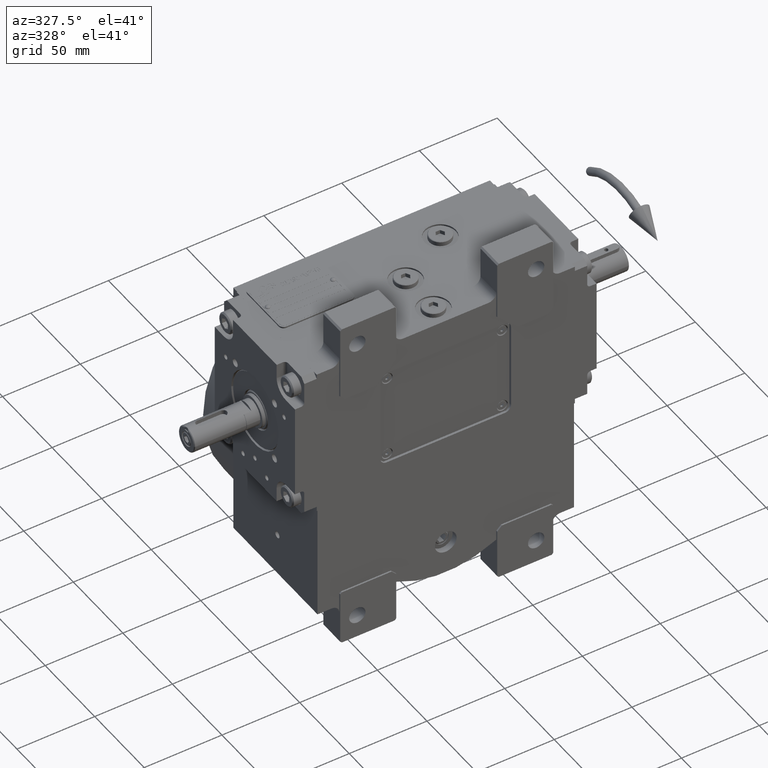
[diagram: clean part render]
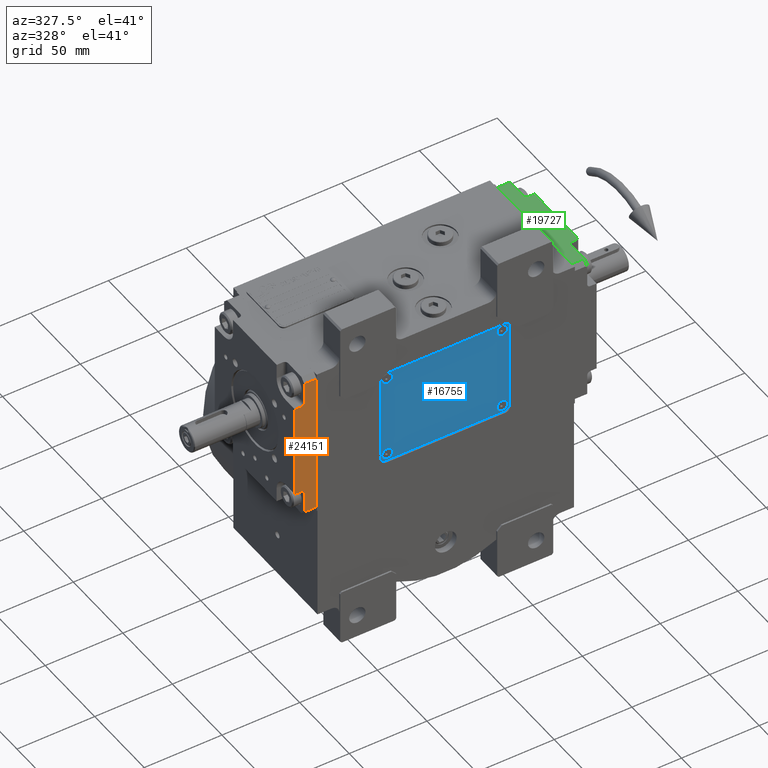
[diagram: same view with three faces highlighted in distinct colors, each labeled with its STEP entity id]
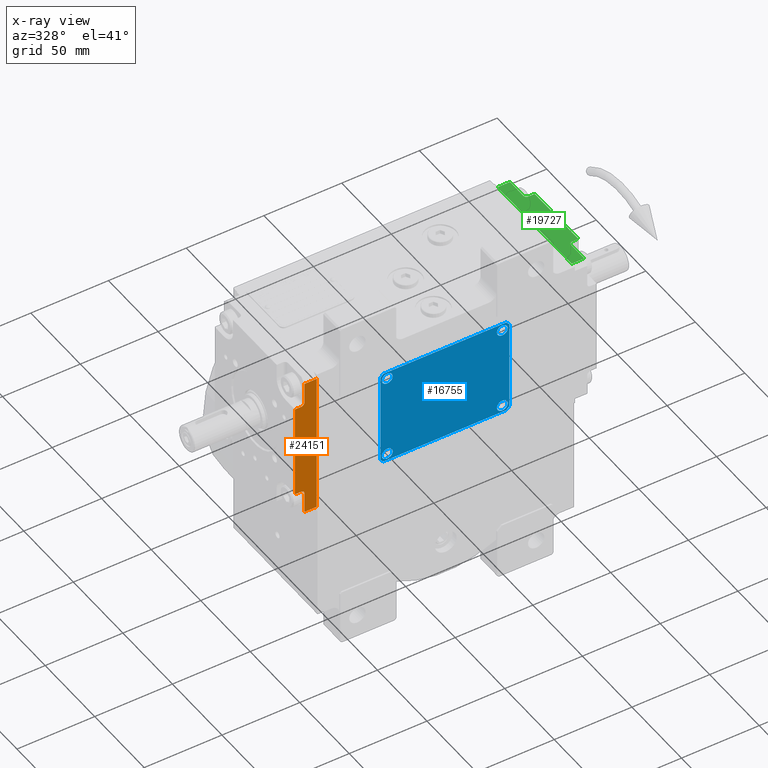
[diagram: x-ray of the same camera — body ghosted, the three highlighted faces saturated]
A machine part, auxiliary view with three faces highlighted in distinct colors.
The next image is the same camera in x-ray (body ghosted, the three faces saturated) — at least one of them is partly hidden behind the body in this view.
Their STEP definitions:

[orange] entity #24151 — the highlighted planar face has unit normal (-0, -1, -0).
#632 = EDGE_CURVE ( 'NONE', #45059, #46808, #52905, .T. ) ;
#1247 = DIRECTION ( 'NONE',  ( -3.122502256758250246E-14, -2.602085213965208275E-15, -1.000000000000000000 ) ) ;
#2086 = ORIENTED_EDGE ( 'NONE', *, *, #15331, .F. ) ;
#2377 = LINE ( 'NONE', #43037, #58990 ) ;
#2817 = VECTOR ( 'NONE', #10525, 1000.000000000000000 ) ;
#3401 = AXIS2_PLACEMENT_3D ( 'NONE', #45823, #11567, #1247 ) ;
#5436 = ORIENTED_EDGE ( 'NONE', *, *, #62373, .T. ) ;
#5790 = DIRECTION ( 'NONE',  ( -5.318913696477178202E-29, -1.000000000000000000, -4.218847493575603531E-15 ) ) ;
#6089 = CARTESIAN_POINT ( 'NONE',  ( -40.50000000000105871, -10.00000000000000888, -30.50000000000106937 ) ) ;
#7337 = VECTOR ( 'NONE', #8565, 1000.000000000000000 ) ;
#7767 = DIRECTION ( 'NONE',  ( -5.318913696477178202E-29, -1.000000000000000000, -4.218847493575603531E-15 ) ) ;
#8565 = DIRECTION ( 'NONE',  ( 3.164135620181696140E-14, 4.218847493575609842E-15, 1.000000000000000000 ) ) ;
#8619 = CARTESIAN_POINT ( 'NONE',  ( -40.50000000000158451, 0.000000000000000000, -46.00000000000105160 ) ) ;
#8889 = DIRECTION ( 'NONE',  ( 5.318913696477178202E-29, 1.000000000000000000, 4.218847493575603531E-15 ) ) ;
#9895 = LINE ( 'NONE', #54799, #2817 ) ;
#10525 = DIRECTION ( 'NONE',  ( 5.318913696477178202E-29, 1.000000000000000000, 4.218847493575603531E-15 ) ) ;
#10890 = CARTESIAN_POINT ( 'NONE',  ( -40.49999999999921130, -13.99999999999999822, 30.49999999999841549 ) ) ;
#11567 = DIRECTION ( 'NONE',  ( 1.000000000000000000, 5.317741082157147631E-29, 3.164135620181696140E-14 ) ) ;
#11854 = VERTEX_POINT ( 'NONE', #15641 ) ;
#13286 = DIRECTION ( 'NONE',  ( 3.164135620181696140E-14, 4.218847493575609842E-15, 1.000000000000000000 ) ) ;
#14218 = ORIENTED_EDGE ( 'NONE', *, *, #44705, .F. ) ;
#15331 = EDGE_CURVE ( 'NONE', #45171, #26677, #24124, .T. ) ;
#15641 = CARTESIAN_POINT ( 'NONE',  ( -40.49999999999921130, -9.999999999999994671, 30.49999999999841549 ) ) ;
#16662 = LINE ( 'NONE', #56108, #7337 ) ;
#18268 = FACE_OUTER_BOUND ( 'NONE', #39839, .T. ) ;
#18566 = ORIENTED_EDGE ( 'NONE', *, *, #50321, .T. ) ;
#21010 = VERTEX_POINT ( 'NONE', #6089 ) ;
#21391 = ORIENTED_EDGE ( 'NONE', *, *, #60599, .T. ) ;
#22819 = PLANE ( 'NONE',  #27006 ) ;
#23450 = DIRECTION ( 'NONE',  ( 3.164135620181696140E-14, 4.218847493575609842E-15, 1.000000000000000000 ) ) ;
#23706 = ORIENTED_EDGE ( 'NONE', *, *, #38279, .T. ) ;
#24124 = LINE ( 'NONE', #8619, #59705 ) ;
#24151 = ADVANCED_FACE ( 'NONE', ( #18268 ), #22819, .T. ) ;
#24850 = CARTESIAN_POINT ( 'NONE',  ( -40.50000000000105871, -13.99999999999999822, -30.50000000000106937 ) ) ;
#26677 = VERTEX_POINT ( 'NONE', #51564 ) ;
#27006 = AXIS2_PLACEMENT_3D ( 'NONE', #32501, #52534, #23450 ) ;
#28190 = AXIS2_PLACEMENT_3D ( 'NONE', #32446, #38246, #42137 ) ;
#28304 = VERTEX_POINT ( 'NONE', #38937 ) ;
#30938 = CARTESIAN_POINT ( 'NONE',  ( -40.50000000000158451, 0.000000000000000000, -46.00000000000105160 ) ) ;
#31761 = VECTOR ( 'NONE', #5790, 1000.000000000000000 ) ;
#32446 = CARTESIAN_POINT ( 'NONE',  ( -40.50000000000132161, -10.00000000000000888, -32.50000000000107292 ) ) ;
#32501 = CARTESIAN_POINT ( 'NONE',  ( -40.50000000000158451, 0.000000000000000000, -49.00000000000105871 ) ) ;
#33490 = DIRECTION ( 'NONE',  ( 3.164135620181696140E-14, 4.218847493575609842E-15, 1.000000000000000000 ) ) ;
#34827 = CARTESIAN_POINT ( 'NONE',  ( -40.49999999999868550, -7.999999999999992895, 45.99999999999841549 ) ) ;
#36120 = VERTEX_POINT ( 'NONE', #48424 ) ;
#36813 = EDGE_CURVE ( 'NONE', #56307, #53870, #2377, .T. ) ;
#38246 = DIRECTION ( 'NONE',  ( 1.000000000000000000, 5.317741082157147631E-29, 3.164135620181696140E-14 ) ) ;
#38279 = EDGE_CURVE ( 'NONE', #36120, #28304, #16662, .T. ) ;
#38937 = CARTESIAN_POINT ( 'NONE',  ( -40.50000000000132161, -8.000000000000007105, -32.50000000000107292 ) ) ;
#39839 = EDGE_LOOP ( 'NONE', ( #51141, #5436, #21391, #51221, #14218, #2086, #18566, #23706, #61400, #53537 ) ) ;
#40350 = LINE ( 'NONE', #30938, #31761 ) ;
#42005 = CARTESIAN_POINT ( 'NONE',  ( -40.49999999999894840, -7.999999999999992895, 32.49999999999842260 ) ) ;
#42137 = DIRECTION ( 'NONE',  ( 0.000000000000000000, 1.000000000000000000, 3.469446951953614189E-15 ) ) ;
#42845 = EDGE_CURVE ( 'NONE', #28304, #21010, #47795, .T. ) ;
#43037 = CARTESIAN_POINT ( 'NONE',  ( -40.49999999999894840, -7.999999999999992895, 32.49999999999842260 ) ) ;
#44093 = LINE ( 'NONE', #63825, #47896 ) ;
#44705 = EDGE_CURVE ( 'NONE', #26677, #53870, #46226, .T. ) ;
#45059 = VERTEX_POINT ( 'NONE', #24850 ) ;
#45165 = VECTOR ( 'NONE', #33490, 1000.000000000000000 ) ;
#45171 = VERTEX_POINT ( 'NONE', #51314 ) ;
#45823 = CARTESIAN_POINT ( 'NONE',  ( -40.49999999999894840, -9.999999999999994671, 32.49999999999842260 ) ) ;
#45924 = CARTESIAN_POINT ( 'NONE',  ( -40.49999999999868550, 0.000000000000000000, 45.99999999999841549 ) ) ;
#46226 = LINE ( 'NONE', #45924, #50064 ) ;
#46808 = VERTEX_POINT ( 'NONE', #10890 ) ;
#47540 = EDGE_CURVE ( 'NONE', #45059, #21010, #9895, .T. ) ;
#47795 = CIRCLE ( 'NONE', #28190, 2.000000000000000000 ) ;
#47855 = CIRCLE ( 'NONE', #3401, 2.000000000000001776 ) ;
#47896 = VECTOR ( 'NONE', #8889, 1000.000000000000000 ) ;
#48424 = CARTESIAN_POINT ( 'NONE',  ( -40.50000000000158451, -8.000000000000007105, -46.00000000000105160 ) ) ;
#50064 = VECTOR ( 'NONE', #7767, 1000.000000000000000 ) ;
#50321 = EDGE_CURVE ( 'NONE', #45171, #36120, #40350, .T. ) ;
#51141 = ORIENTED_EDGE ( 'NONE', *, *, #632, .T. ) ;
#51221 = ORIENTED_EDGE ( 'NONE', *, *, #36813, .T. ) ;
#51314 = CARTESIAN_POINT ( 'NONE',  ( -40.50000000000158451, 0.000000000000000000, -46.00000000000105160 ) ) ;
#51564 = CARTESIAN_POINT ( 'NONE',  ( -40.49999999999868550, 0.000000000000000000, 45.99999999999841549 ) ) ;
#52246 = DIRECTION ( 'NONE',  ( 3.164135620181696140E-14, 4.218847493575609842E-15, 1.000000000000000000 ) ) ;
#52249 = CARTESIAN_POINT ( 'NONE',  ( -40.50000000000105871, -13.99999999999999822, -30.50000000000106937 ) ) ;
#52534 = DIRECTION ( 'NONE',  ( -1.000000000000000000, 2.138027017891656258E-28, 3.164135620181696140E-14 ) ) ;
#52905 = LINE ( 'NONE', #52249, #45165 ) ;
#53537 = ORIENTED_EDGE ( 'NONE', *, *, #47540, .F. ) ;
#53870 = VERTEX_POINT ( 'NONE', #34827 ) ;
#54799 = CARTESIAN_POINT ( 'NONE',  ( -40.50000000000105871, -13.99999999999999822, -30.50000000000106937 ) ) ;
#56108 = CARTESIAN_POINT ( 'NONE',  ( -40.50000000000158451, -8.000000000000007105, -46.00000000000105160 ) ) ;
#56307 = VERTEX_POINT ( 'NONE', #42005 ) ;
#58990 = VECTOR ( 'NONE', #13286, 1000.000000000000000 ) ;
#59705 = VECTOR ( 'NONE', #52246, 1000.000000000000000 ) ;
#60599 = EDGE_CURVE ( 'NONE', #11854, #56307, #47855, .T. ) ;
#61400 = ORIENTED_EDGE ( 'NONE', *, *, #42845, .T. ) ;
#62373 = EDGE_CURVE ( 'NONE', #46808, #11854, #44093, .T. ) ;
#63825 = CARTESIAN_POINT ( 'NONE',  ( -40.49999999999921130, -13.99999999999999822, 30.49999999999841549 ) ) ;

[blue] entity #16755 — the highlighted planar face has unit normal (0, -1, 0).
#246 = LINE ( 'NONE', #48723, #52758 ) ;
#383 = VERTEX_POINT ( 'NONE', #51606 ) ;
#928 = VERTEX_POINT ( 'NONE', #49799 ) ;
#997 = ORIENTED_EDGE ( 'NONE', *, *, #36227, .F. ) ;
#1161 = EDGE_LOOP ( 'NONE', ( #56685, #35940, #41957, #63492, #24282, #44295, #25539, #14876 ) ) ;
#2004 = ORIENTED_EDGE ( 'NONE', *, *, #48725, .F. ) ;
#2336 = VERTEX_POINT ( 'NONE', #15626 ) ;
#2522 = CARTESIAN_POINT ( 'NONE',  ( 33.50000000000000000, 26.99999999999999645, 3.000000000000002665 ) ) ;
#2624 = DIRECTION ( 'NONE',  ( 1.000000000000000000, 0.000000000000000000, 0.000000000000000000 ) ) ;
#3095 = AXIS2_PLACEMENT_3D ( 'NONE', #9065, #27795, #43647 ) ;
#3658 = VECTOR ( 'NONE', #2624, 1000.000000000000000 ) ;
#4481 = DIRECTION ( 'NONE',  ( 0.000000000000000000, -1.000000000000000000, 0.000000000000000000 ) ) ;
#5864 = AXIS2_PLACEMENT_3D ( 'NONE', #42340, #62084, #9379 ) ;
#6911 = DIRECTION ( 'NONE',  ( 0.000000000000000000, 0.000000000000000000, 1.000000000000000000 ) ) ;
#7720 = CARTESIAN_POINT ( 'NONE',  ( 39.50000000000000000, 31.50000000000000000, 3.000000000000002665 ) ) ;
#7963 = DIRECTION ( 'NONE',  ( 1.000000000000000000, -9.912705577010316675E-16, 0.000000000000000000 ) ) ;
#8951 = AXIS2_PLACEMENT_3D ( 'NONE', #46209, #17427, #41685 ) ;
#8953 = FACE_BOUND ( 'NONE', #37868, .T. ) ;
#9065 = CARTESIAN_POINT ( 'NONE',  ( 37.00000000000000000, 26.99999999999999645, 3.000000000000002665 ) ) ;
#9301 = VERTEX_POINT ( 'NONE', #45329 ) ;
#9379 = DIRECTION ( 'NONE',  ( -1.000000000000000000, 0.000000000000000000, 0.000000000000000000 ) ) ;
#9818 = LINE ( 'NONE', #24355, #56823 ) ;
#11027 = CIRCLE ( 'NONE', #8951, 3.500000000000003109 ) ;
#11209 = EDGE_CURVE ( 'NONE', #383, #2336, #60474, .T. ) ;
#11673 = CARTESIAN_POINT ( 'NONE',  ( -39.50000000000000000, -31.50000000000000000, 3.000000000000002665 ) ) ;
#12071 = CARTESIAN_POINT ( 'NONE',  ( 37.00000000000000000, -26.99999999999999645, 3.000000000000002665 ) ) ;
#12841 = CARTESIAN_POINT ( 'NONE',  ( 41.50000000000000000, 29.50000000000000000, 3.000000000000002665 ) ) ;
#13137 = CARTESIAN_POINT ( 'NONE',  ( 0.000000000000000000, 0.000000000000000000, 3.000000000000002665 ) ) ;
#14250 = AXIS2_PLACEMENT_3D ( 'NONE', #48043, #19243, #7963 ) ;
#14304 = VERTEX_POINT ( 'NONE', #32661 ) ;
#14364 = ORIENTED_EDGE ( 'NONE', *, *, #19210, .F. ) ;
#14876 = ORIENTED_EDGE ( 'NONE', *, *, #37936, .T. ) ;
#15140 = CARTESIAN_POINT ( 'NONE',  ( -37.00000000000000000, -26.99999999999999645, 3.000000000000002665 ) ) ;
#15346 = EDGE_CURVE ( 'NONE', #61833, #22262, #48341, .T. ) ;
#15469 = CARTESIAN_POINT ( 'NONE',  ( -33.50000000000000000, -26.99999999999999645, 3.000000000000002665 ) ) ;
#15626 = CARTESIAN_POINT ( 'NONE',  ( 39.50000000000000000, -31.50000000000000000, 3.000000000000002665 ) ) ;
#16738 = CARTESIAN_POINT ( 'NONE',  ( -41.50000000000000000, 29.50000000000000000, 3.000000000000002665 ) ) ;
#16755 = ADVANCED_FACE ( 'NONE', ( #34142, #58407, #57753, #53231, #8953 ), #38019, .T. ) ;
#17210 = CARTESIAN_POINT ( 'NONE',  ( 37.00000000000000000, -26.99999999999999645, 3.000000000000002665 ) ) ;
#17401 = AXIS2_PLACEMENT_3D ( 'NONE', #13137, #62919, #33172 ) ;
#17427 = DIRECTION ( 'NONE',  ( 0.000000000000000000, 0.000000000000000000, 1.000000000000000000 ) ) ;
#17750 = ORIENTED_EDGE ( 'NONE', *, *, #30771, .F. ) ;
#18021 = CARTESIAN_POINT ( 'NONE',  ( -40.50000000000000000, 26.99999999999999645, 3.000000000000002665 ) ) ;
#18227 = CARTESIAN_POINT ( 'NONE',  ( 41.50000000000000000, -29.50000000000000000, 3.000000000000002665 ) ) ;
#19210 = EDGE_CURVE ( 'NONE', #22967, #36474, #35661, .T. ) ;
#19243 = DIRECTION ( 'NONE',  ( 0.000000000000000000, 0.000000000000000000, 1.000000000000000000 ) ) ;
#19665 = EDGE_CURVE ( 'NONE', #26696, #43960, #39313, .T. ) ;
#20505 = EDGE_CURVE ( 'NONE', #26235, #383, #33011, .T. ) ;
#21914 = LINE ( 'NONE', #12841, #28115 ) ;
#21927 = EDGE_CURVE ( 'NONE', #22262, #61833, #60565, .T. ) ;
#22262 = VERTEX_POINT ( 'NONE', #18021 ) ;
#22459 = EDGE_CURVE ( 'NONE', #43960, #26235, #246, .T. ) ;
#22967 = VERTEX_POINT ( 'NONE', #55100 ) ;
#23152 = EDGE_LOOP ( 'NONE', ( #61233, #34147 ) ) ;
#23726 = LINE ( 'NONE', #18227, #31279 ) ;
#24282 = ORIENTED_EDGE ( 'NONE', *, *, #22459, .T. ) ;
#24355 = CARTESIAN_POINT ( 'NONE',  ( 39.50000000000000000, 31.50000000000000000, 3.000000000000002665 ) ) ;
#25539 = ORIENTED_EDGE ( 'NONE', *, *, #11209, .T. ) ;
#26235 = VERTEX_POINT ( 'NONE', #51011 ) ;
#26614 = DIRECTION ( 'NONE',  ( -1.000000000000000000, 0.000000000000000000, 0.000000000000000000 ) ) ;
#26696 = VERTEX_POINT ( 'NONE', #46725 ) ;
#26846 = ORIENTED_EDGE ( 'NONE', *, *, #15346, .F. ) ;
#27313 = VECTOR ( 'NONE', #48367, 1000.000000000000114 ) ;
#27697 = ORIENTED_EDGE ( 'NONE', *, *, #21927, .F. ) ;
#27795 = DIRECTION ( 'NONE',  ( 0.000000000000000000, 0.000000000000000000, 1.000000000000000000 ) ) ;
#27943 = AXIS2_PLACEMENT_3D ( 'NONE', #12071, #6911, #26614 ) ;
#28019 = LINE ( 'NONE', #48369, #42533 ) ;
#28115 = VECTOR ( 'NONE', #46789, 1000.000000000000114 ) ;
#28177 = DIRECTION ( 'NONE',  ( 0.000000000000000000, 0.000000000000000000, 1.000000000000000000 ) ) ;
#29031 = CARTESIAN_POINT ( 'NONE',  ( -40.50000000000000000, -26.99999999999999645, 3.000000000000002665 ) ) ;
#29146 = DIRECTION ( 'NONE',  ( 0.7071067811865474617, -0.7071067811865474617, 0.000000000000000000 ) ) ;
#29514 = DIRECTION ( 'NONE',  ( -1.000000000000000000, 0.000000000000000000, 0.000000000000000000 ) ) ;
#30771 = EDGE_CURVE ( 'NONE', #36474, #22967, #60847, .T. ) ;
#31279 = VECTOR ( 'NONE', #52829, 1000.000000000000000 ) ;
#31470 = EDGE_CURVE ( 'NONE', #9301, #928, #36148, .T. ) ;
#32258 = VERTEX_POINT ( 'NONE', #7720 ) ;
#32384 = DIRECTION ( 'NONE',  ( 1.000000000000000000, 0.000000000000000000, 0.000000000000000000 ) ) ;
#32661 = CARTESIAN_POINT ( 'NONE',  ( 41.50000000000000000, 29.50000000000000000, 3.000000000000002665 ) ) ;
#32999 = DIRECTION ( 'NONE',  ( 0.000000000000000000, 0.000000000000000000, 1.000000000000000000 ) ) ;
#33011 = LINE ( 'NONE', #52755, #53200 ) ;
#33172 = DIRECTION ( 'NONE',  ( 1.000000000000000000, 0.000000000000000000, 0.000000000000000000 ) ) ;
#33655 = DIRECTION ( 'NONE',  ( 1.000000000000000000, 0.000000000000000000, 0.000000000000000000 ) ) ;
#33814 = VERTEX_POINT ( 'NONE', #29031 ) ;
#33949 = VERTEX_POINT ( 'NONE', #49697 ) ;
#34142 = FACE_OUTER_BOUND ( 'NONE', #1161, .T. ) ;
#34146 = CARTESIAN_POINT ( 'NONE',  ( -39.50000000000000000, 31.50000000000000000, 3.000000000000002665 ) ) ;
#34147 = ORIENTED_EDGE ( 'NONE', *, *, #31470, .F. ) ;
#35661 = CIRCLE ( 'NONE', #37588, 3.500000000000003109 ) ;
#35940 = ORIENTED_EDGE ( 'NONE', *, *, #56604, .T. ) ;
#36148 = CIRCLE ( 'NONE', #27943, 3.500000000000003109 ) ;
#36227 = EDGE_CURVE ( 'NONE', #33814, #56508, #50661, .T. ) ;
#36474 = VERTEX_POINT ( 'NONE', #2522 ) ;
#36885 = EDGE_CURVE ( 'NONE', #928, #9301, #59997, .T. ) ;
#37588 = AXIS2_PLACEMENT_3D ( 'NONE', #38178, #32999, #33655 ) ;
#37868 = EDGE_LOOP ( 'NONE', ( #2004, #997 ) ) ;
#37936 = EDGE_CURVE ( 'NONE', #2336, #33949, #28019, .T. ) ;
#38019 = PLANE ( 'NONE',  #17401 ) ;
#38178 = CARTESIAN_POINT ( 'NONE',  ( 37.00000000000000000, 26.99999999999999645, 3.000000000000002665 ) ) ;
#39313 = LINE ( 'NONE', #34146, #27313 ) ;
#41685 = DIRECTION ( 'NONE',  ( 1.000000000000000000, -9.912705577010316675E-16, 0.000000000000000000 ) ) ;
#41957 = ORIENTED_EDGE ( 'NONE', *, *, #54695, .T. ) ;
#42340 = CARTESIAN_POINT ( 'NONE',  ( -37.00000000000000000, 26.99999999999999645, 3.000000000000002665 ) ) ;
#42533 = VECTOR ( 'NONE', #62609, 999.9999999999998863 ) ;
#43647 = DIRECTION ( 'NONE',  ( -1.000000000000000000, 0.000000000000000000, 0.000000000000000000 ) ) ;
#43960 = VERTEX_POINT ( 'NONE', #16738 ) ;
#44295 = ORIENTED_EDGE ( 'NONE', *, *, #20505, .T. ) ;
#45179 = DIRECTION ( 'NONE',  ( 0.000000000000000000, 0.000000000000000000, 1.000000000000000000 ) ) ;
#45329 = CARTESIAN_POINT ( 'NONE',  ( 33.50000000000000000, -26.99999999999999645, 3.000000000000002665 ) ) ;
#46209 = CARTESIAN_POINT ( 'NONE',  ( -37.00000000000000000, -26.99999999999999645, 3.000000000000002665 ) ) ;
#46725 = CARTESIAN_POINT ( 'NONE',  ( -39.50000000000000000, 31.50000000000000000, 3.000000000000002665 ) ) ;
#46789 = DIRECTION ( 'NONE',  ( -0.7071067811865474617, 0.7071067811865474617, 0.000000000000000000 ) ) ;
#48043 = CARTESIAN_POINT ( 'NONE',  ( -37.00000000000000000, 26.99999999999999645, 3.000000000000002665 ) ) ;
#48341 = CIRCLE ( 'NONE', #14250, 3.500000000000003109 ) ;
#48367 = DIRECTION ( 'NONE',  ( -0.7071067811865474617, -0.7071067811865474617, 0.000000000000000000 ) ) ;
#48369 = CARTESIAN_POINT ( 'NONE',  ( 39.50000000000000000, -31.50000000000000000, 3.000000000000002665 ) ) ;
#48723 = CARTESIAN_POINT ( 'NONE',  ( -41.50000000000000000, 29.50000000000000000, 3.000000000000002665 ) ) ;
#48725 = EDGE_CURVE ( 'NONE', #56508, #33814, #11027, .T. ) ;
#49697 = CARTESIAN_POINT ( 'NONE',  ( 41.50000000000000000, -29.50000000000000000, 3.000000000000002665 ) ) ;
#49799 = CARTESIAN_POINT ( 'NONE',  ( 40.50000000000000000, -26.99999999999999645, 3.000000000000002665 ) ) ;
#50661 = CIRCLE ( 'NONE', #52690, 3.500000000000003109 ) ;
#51011 = CARTESIAN_POINT ( 'NONE',  ( -41.50000000000000000, -29.50000000000000000, 3.000000000000002665 ) ) ;
#51606 = CARTESIAN_POINT ( 'NONE',  ( -39.50000000000000000, -31.50000000000000000, 3.000000000000002665 ) ) ;
#51947 = EDGE_LOOP ( 'NONE', ( #14364, #17750 ) ) ;
#52690 = AXIS2_PLACEMENT_3D ( 'NONE', #15140, #45179, #60373 ) ;
#52755 = CARTESIAN_POINT ( 'NONE',  ( -41.50000000000000000, -29.50000000000000000, 3.000000000000002665 ) ) ;
#52758 = VECTOR ( 'NONE', #4481, 1000.000000000000000 ) ;
#52829 = DIRECTION ( 'NONE',  ( 0.000000000000000000, 1.000000000000000000, 0.000000000000000000 ) ) ;
#53200 = VECTOR ( 'NONE', #29146, 1000.000000000000114 ) ;
#53231 = FACE_BOUND ( 'NONE', #23152, .T. ) ;
#54695 = EDGE_CURVE ( 'NONE', #32258, #26696, #9818, .T. ) ;
#55100 = CARTESIAN_POINT ( 'NONE',  ( 40.50000000000000000, 26.99999999999999645, 3.000000000000002665 ) ) ;
#56508 = VERTEX_POINT ( 'NONE', #15469 ) ;
#56604 = EDGE_CURVE ( 'NONE', #14304, #32258, #21914, .T. ) ;
#56685 = ORIENTED_EDGE ( 'NONE', *, *, #61347, .T. ) ;
#56823 = VECTOR ( 'NONE', #29514, 1000.000000000000000 ) ;
#57753 = FACE_BOUND ( 'NONE', #61863, .T. ) ;
#58407 = FACE_BOUND ( 'NONE', #51947, .T. ) ;
#59997 = CIRCLE ( 'NONE', #61000, 3.500000000000003109 ) ;
#60373 = DIRECTION ( 'NONE',  ( -1.000000000000000000, 0.000000000000000000, 0.000000000000000000 ) ) ;
#60473 = CARTESIAN_POINT ( 'NONE',  ( -33.50000000000000000, 26.99999999999999645, 3.000000000000002665 ) ) ;
#60474 = LINE ( 'NONE', #11673, #3658 ) ;
#60565 = CIRCLE ( 'NONE', #5864, 3.500000000000003109 ) ;
#60847 = CIRCLE ( 'NONE', #3095, 3.500000000000003109 ) ;
#61000 = AXIS2_PLACEMENT_3D ( 'NONE', #17210, #28177, #32384 ) ;
#61233 = ORIENTED_EDGE ( 'NONE', *, *, #36885, .F. ) ;
#61347 = EDGE_CURVE ( 'NONE', #33949, #14304, #23726, .T. ) ;
#61833 = VERTEX_POINT ( 'NONE', #60473 ) ;
#61863 = EDGE_LOOP ( 'NONE', ( #26846, #27697 ) ) ;
#62084 = DIRECTION ( 'NONE',  ( 0.000000000000000000, 0.000000000000000000, 1.000000000000000000 ) ) ;
#62609 = DIRECTION ( 'NONE',  ( 0.7071067811865441310, 0.7071067811865510144, 0.000000000000000000 ) ) ;
#62919 = DIRECTION ( 'NONE',  ( 0.000000000000000000, 0.000000000000000000, 1.000000000000000000 ) ) ;
#63492 = ORIENTED_EDGE ( 'NONE', *, *, #19665, .T. ) ;

[green] entity #19727 — the highlighted planar face has unit normal (-0, -0, 1).
#1048 = ORIENTED_EDGE ( 'NONE', *, *, #29147, .T. ) ;
#1129 = CARTESIAN_POINT ( 'NONE',  ( 23.99999999999986855, -10.00000000000052225, -48.99999999999998579 ) ) ;
#2143 = LINE ( 'NONE', #7293, #36710 ) ;
#2474 = ORIENTED_EDGE ( 'NONE', *, *, #11572, .T. ) ;
#3593 = DIRECTION ( 'NONE',  ( -2.320366121466573383E-14, 1.000000000000000000, -2.109423746787903923E-15 ) ) ;
#3665 = VECTOR ( 'NONE', #48139, 1000.000000000000000 ) ;
#4532 = CARTESIAN_POINT ( 'NONE',  ( 37.49999999999973710, -8.000000000000534683, -48.99999999999998579 ) ) ;
#5047 = ORIENTED_EDGE ( 'NONE', *, *, #41427, .T. ) ;
#5087 = CARTESIAN_POINT ( 'NONE',  ( 21.99999999999986855, -14.00000000000052580, -48.99999999999998579 ) ) ;
#5372 = VECTOR ( 'NONE', #60983, 1000.000000000000000 ) ;
#5784 = ORIENTED_EDGE ( 'NONE', *, *, #29535, .T. ) ;
#5982 = CARTESIAN_POINT ( 'NONE',  ( -24.00000000000026290, -7.999999999999466205, -49.00000000000001421 ) ) ;
#6060 = EDGE_CURVE ( 'NONE', #41090, #61488, #31801, .T. ) ;
#7293 = CARTESIAN_POINT ( 'NONE',  ( 21.99999999999986855, -14.00000000000052580, -48.99999999999998579 ) ) ;
#8393 = LINE ( 'NONE', #4532, #3665 ) ;
#8502 = AXIS2_PLACEMENT_3D ( 'NONE', #1129, #16293, #36650 ) ;
#8738 = ORIENTED_EDGE ( 'NONE', *, *, #40968, .T. ) ;
#9327 = CIRCLE ( 'NONE', #39255, 2.000000000000001776 ) ;
#9915 = CARTESIAN_POINT ( 'NONE',  ( 40.49999999999947420, -1.054711873393898713E-12, -48.99999999999998579 ) ) ;
#11572 = EDGE_CURVE ( 'NONE', #28012, #40575, #2143, .T. ) ;
#12421 = DIRECTION ( 'NONE',  ( 2.320366121466573383E-14, -1.000000000000000000, 2.109423746787903923E-15 ) ) ;
#13848 = DIRECTION ( 'NONE',  ( -2.320366121466573383E-14, 1.000000000000000000, -2.109423746787903923E-15 ) ) ;
#14116 = DIRECTION ( 'NONE',  ( 8.437694987151285948E-15, 2.109423746787513042E-15, -1.000000000000000000 ) ) ;
#15593 = EDGE_CURVE ( 'NONE', #42905, #41392, #25940, .T. ) ;
#16044 = LINE ( 'NONE', #35740, #29326 ) ;
#16293 = DIRECTION ( 'NONE',  ( 8.437694987151235461E-15, -2.109423746787904317E-15, 1.000000000000000000 ) ) ;
#16363 = VECTOR ( 'NONE', #49305, 1000.000000000000000 ) ;
#19305 = LINE ( 'NONE', #58136, #59873 ) ;
#19554 = CARTESIAN_POINT ( 'NONE',  ( 37.49999999999947420, -5.273559366969493567E-13, -48.99999999999998579 ) ) ;
#19727 = ADVANCED_FACE ( 'NONE', ( #44807 ), #58411, .T. ) ;
#19806 = VERTEX_POINT ( 'NONE', #50927 ) ;
#23997 = EDGE_LOOP ( 'NONE', ( #57511, #57554, #52677, #40712, #5047, #43813, #2474, #1048, #5784, #8738 ) ) ;
#25940 = LINE ( 'NONE', #19554, #16363 ) ;
#26644 = CARTESIAN_POINT ( 'NONE',  ( -37.50000000000052580, 5.273559366969493567E-13, -49.00000000000001421 ) ) ;
#27291 = CARTESIAN_POINT ( 'NONE',  ( 37.49999999999947420, -5.273559366969493567E-13, -48.99999999999998579 ) ) ;
#27852 = VECTOR ( 'NONE', #3593, 1000.000000000000000 ) ;
#28012 = VERTEX_POINT ( 'NONE', #5087 ) ;
#28132 = LINE ( 'NONE', #44193, #27852 ) ;
#29147 = EDGE_CURVE ( 'NONE', #40575, #60355, #28132, .T. ) ;
#29326 = VECTOR ( 'NONE', #59381, 1000.000000000000000 ) ;
#29535 = EDGE_CURVE ( 'NONE', #60355, #35003, #9327, .T. ) ;
#31152 = CARTESIAN_POINT ( 'NONE',  ( 37.49999999999973710, -8.000000000000534683, -48.99999999999998579 ) ) ;
#31801 = LINE ( 'NONE', #26644, #45496 ) ;
#32781 = DIRECTION ( 'NONE',  ( -1.000000000000000000, 2.320366121466573383E-14, -8.437694987151237039E-15 ) ) ;
#33469 = CARTESIAN_POINT ( 'NONE',  ( -37.50000000000052580, 5.273559366969493567E-13, -49.00000000000001421 ) ) ;
#35003 = VERTEX_POINT ( 'NONE', #5982 ) ;
#35740 = CARTESIAN_POINT ( 'NONE',  ( 37.49999999999947420, -5.273559366969493567E-13, -48.99999999999998579 ) ) ;
#36650 = DIRECTION ( 'NONE',  ( -2.255140518769849223E-14, 1.000000000000000000, -3.469446951953614189E-15 ) ) ;
#36710 = VECTOR ( 'NONE', #32781, 1000.000000000000000 ) ;
#38991 = DIRECTION ( 'NONE',  ( -1.000000000000000000, 2.320366121466573383E-14, -8.437694987151237039E-15 ) ) ;
#39255 = AXIS2_PLACEMENT_3D ( 'NONE', #43808, #52866, #43481 ) ;
#40575 = VERTEX_POINT ( 'NONE', #62972 ) ;
#40712 = ORIENTED_EDGE ( 'NONE', *, *, #44921, .T. ) ;
#40930 = CARTESIAN_POINT ( 'NONE',  ( -24.00000000000026290, -7.999999999999466205, -49.00000000000001421 ) ) ;
#40968 = EDGE_CURVE ( 'NONE', #35003, #61488, #41250, .T. ) ;
#41090 = VERTEX_POINT ( 'NONE', #33469 ) ;
#41250 = LINE ( 'NONE', #40930, #5372 ) ;
#41392 = VERTEX_POINT ( 'NONE', #31152 ) ;
#41427 = EDGE_CURVE ( 'NONE', #19806, #51673, #45635, .T. ) ;
#42905 = VERTEX_POINT ( 'NONE', #27291 ) ;
#43481 = DIRECTION ( 'NONE',  ( 1.000000000000000000, -2.168404344971006975E-14, 6.938893903907222067E-15 ) ) ;
#43808 = CARTESIAN_POINT ( 'NONE',  ( -24.00000000000013145, -9.999999999999467093, -49.00000000000001421 ) ) ;
#43813 = ORIENTED_EDGE ( 'NONE', *, *, #52581, .F. ) ;
#44193 = CARTESIAN_POINT ( 'NONE',  ( -22.00000000000013145, -13.99999999999947065, -49.00000000000001421 ) ) ;
#44684 = CARTESIAN_POINT ( 'NONE',  ( 21.99999999999986855, -10.00000000000052225, -48.99999999999998579 ) ) ;
#44807 = FACE_OUTER_BOUND ( 'NONE', #23997, .T. ) ;
#44921 = EDGE_CURVE ( 'NONE', #41392, #19806, #8393, .T. ) ;
#45496 = VECTOR ( 'NONE', #12421, 1000.000000000000000 ) ;
#45635 = CIRCLE ( 'NONE', #8502, 2.000000000000000000 ) ;
#48139 = DIRECTION ( 'NONE',  ( -1.000000000000000000, 2.320366121466573383E-14, -8.437694987151237039E-15 ) ) ;
#49305 = DIRECTION ( 'NONE',  ( 2.320366121466573383E-14, -1.000000000000000000, 2.109423746787903923E-15 ) ) ;
#50927 = CARTESIAN_POINT ( 'NONE',  ( 23.99999999999973710, -8.000000000000534683, -48.99999999999998579 ) ) ;
#51673 = VERTEX_POINT ( 'NONE', #44684 ) ;
#52581 = EDGE_CURVE ( 'NONE', #28012, #51673, #19305, .T. ) ;
#52677 = ORIENTED_EDGE ( 'NONE', *, *, #15593, .T. ) ;
#52866 = DIRECTION ( 'NONE',  ( 8.437694987151235461E-15, -2.109423746787904317E-15, 1.000000000000000000 ) ) ;
#57511 = ORIENTED_EDGE ( 'NONE', *, *, #6060, .F. ) ;
#57554 = ORIENTED_EDGE ( 'NONE', *, *, #58360, .F. ) ;
#58136 = CARTESIAN_POINT ( 'NONE',  ( 21.99999999999986855, -14.00000000000052580, -48.99999999999998579 ) ) ;
#58360 = EDGE_CURVE ( 'NONE', #42905, #41090, #16044, .T. ) ;
#58411 = PLANE ( 'NONE',  #62427 ) ;
#59381 = DIRECTION ( 'NONE',  ( -1.000000000000000000, 2.320366121466573383E-14, -8.437694987151237039E-15 ) ) ;
#59873 = VECTOR ( 'NONE', #13848, 1000.000000000000000 ) ;
#60355 = VERTEX_POINT ( 'NONE', #62354 ) ;
#60983 = DIRECTION ( 'NONE',  ( -1.000000000000000000, 2.320366121466573383E-14, -8.437694987151237039E-15 ) ) ;
#61488 = VERTEX_POINT ( 'NONE', #63815 ) ;
#62354 = CARTESIAN_POINT ( 'NONE',  ( -22.00000000000013145, -9.999999999999467093, -49.00000000000001421 ) ) ;
#62427 = AXIS2_PLACEMENT_3D ( 'NONE', #9915, #14116, #38991 ) ;
#62972 = CARTESIAN_POINT ( 'NONE',  ( -22.00000000000013145, -13.99999999999947065, -49.00000000000001421 ) ) ;
#63815 = CARTESIAN_POINT ( 'NONE',  ( -37.50000000000026290, -7.999999999999466205, -49.00000000000001421 ) ) ;